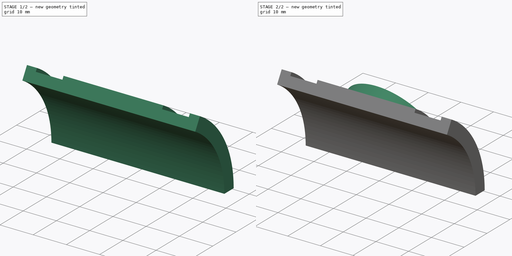
[diagram: build sequence overview — one tinted view per stage of 2, left to right]
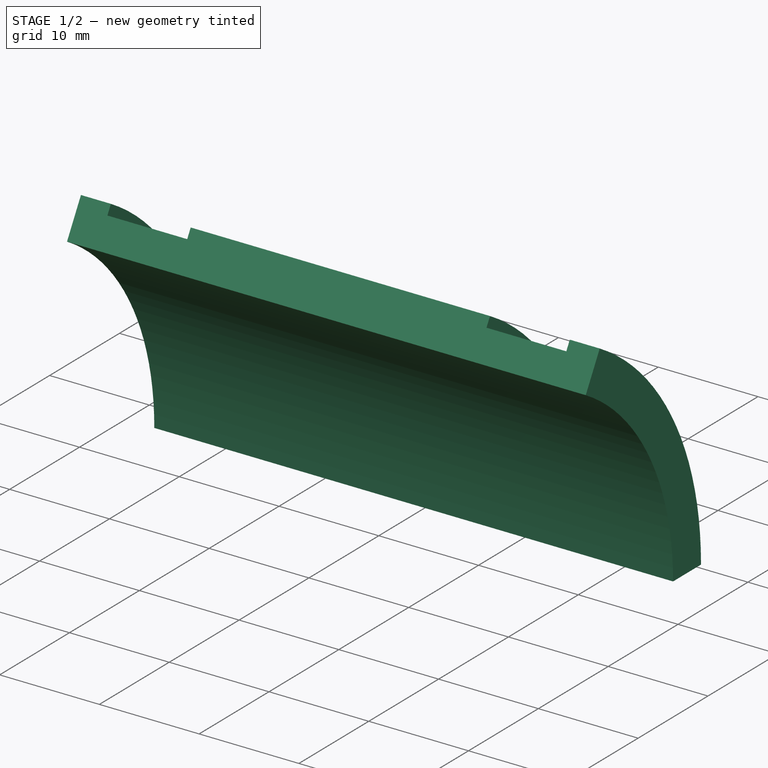
[diagram: stage 1 of 2 — iso view after this stage's code; geometry added in this stage tinted green]
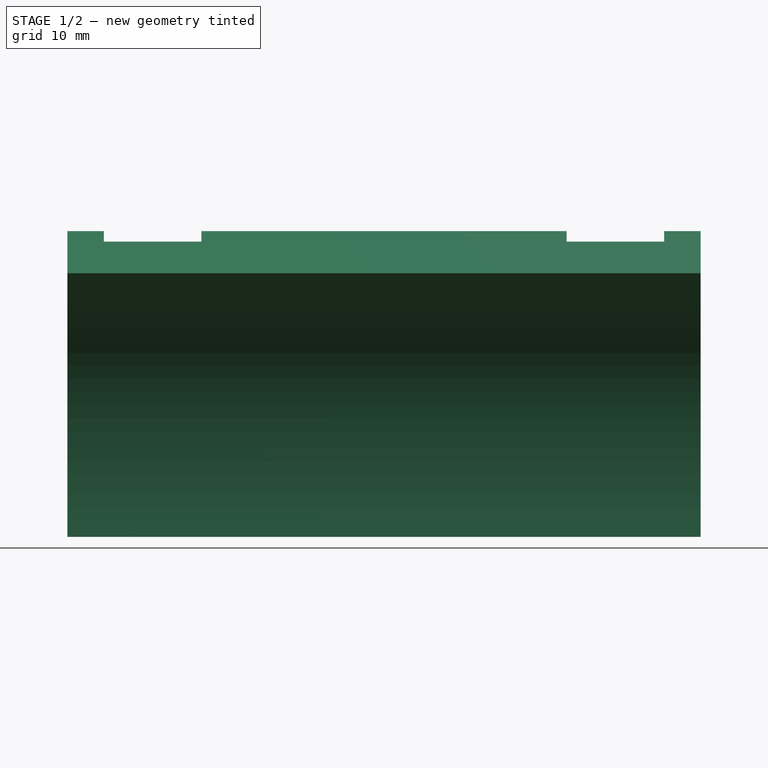
[diagram: stage 1 of 2 — front view after this stage's code; geometry added in this stage tinted green]
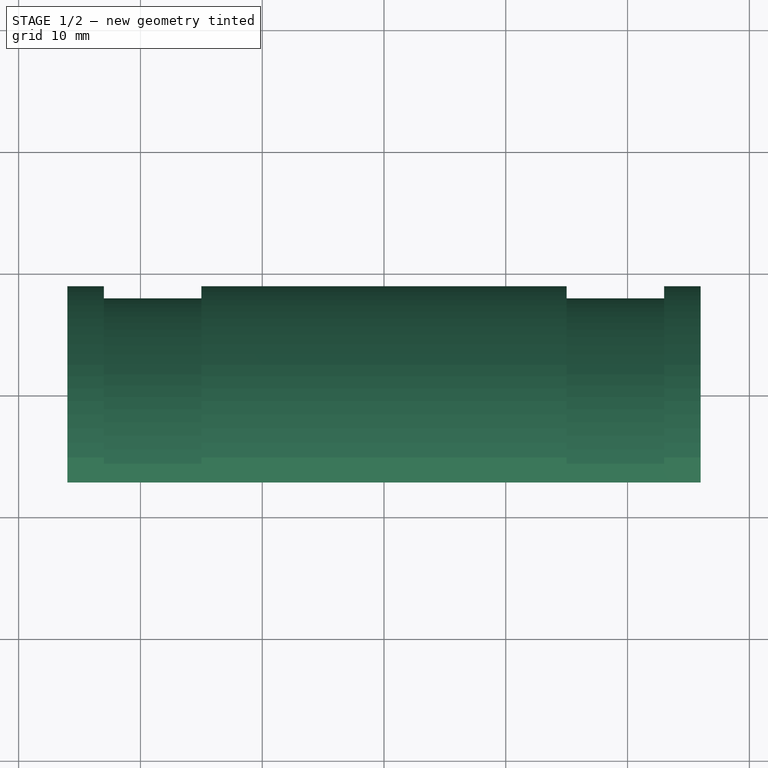
[diagram: stage 1 of 2 — top view after this stage's code; geometry added in this stage tinted green]
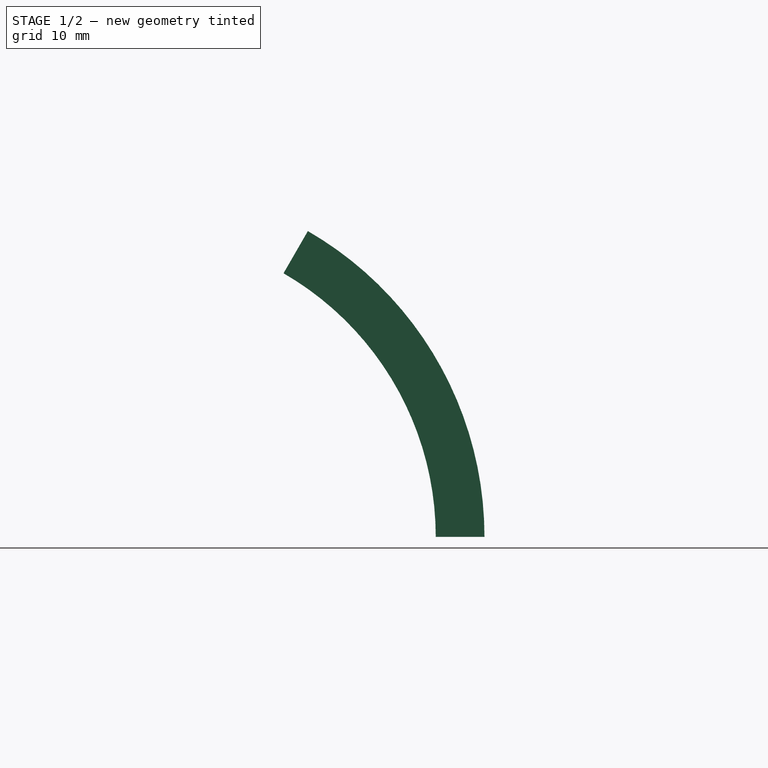
[diagram: stage 1 of 2 — right view after this stage's code; geometry added in this stage tinted green]
FCSTD DOCUMENT  (FreeCAD 0.18R16131 (Git))
Label: DashCamMiniRoleCageMount
License: All rights reserved
LicenseURL: http://en.wikipedia.org/wiki/All_rights_reserved
objects: Sketcher::SketchObject×2, PartDesign::Line×2, PartDesign::Revolution×1, PartDesign::Plane×1, PartDesign::Pad×1, PartDesign::Body×1
note: 10 computed .brp shape members not serialized (recipe doc carries the construction recipe); baked Part::Feature solids carry a one-line shape summary decoded from their .brp

FEATURE [Sketcher::SketchObject] Sketch
  MapMode = 5
  Support = -> [XY_Plane]
  sketch-geometry (12):
    g0: LineSegment StartX=-26 StartY=25 StartZ=0 EndX=26 EndY=25 EndZ=0
    g1: LineSegment StartX=-26 StartY=25 StartZ=0 EndX=-26 EndY=29 EndZ=0
    g2: LineSegment StartX=-26 StartY=29 StartZ=0 EndX=-23 EndY=29 EndZ=0
    g3: LineSegment StartX=-23 StartY=29 StartZ=0 EndX=-23 EndY=28 EndZ=0
    g4: LineSegment StartX=-23 StartY=28 StartZ=0 EndX=-15 EndY=28 EndZ=0
    g5: LineSegment StartX=-15 StartY=28 StartZ=0 EndX=-15 EndY=29 EndZ=0
    g6: LineSegment StartX=-15 StartY=29 StartZ=0 EndX=15 EndY=29 EndZ=0
    g7: LineSegment StartX=15 StartY=29 StartZ=0 EndX=15 EndY=28 EndZ=0
    g8: LineSegment StartX=15 StartY=28 StartZ=0 EndX=23 EndY=28 EndZ=0
    g9: LineSegment StartX=23 StartY=28 StartZ=0 EndX=23 EndY=29 EndZ=0
    g10: LineSegment StartX=23 StartY=29 StartZ=0 EndX=26 EndY=29 EndZ=0
    g11: LineSegment StartX=26 StartY=29 StartZ=0 EndX=26 EndY=25 EndZ=0
  constraints (36):
    c: Horizontal(g0)
    c: Vertical(g1)
    c: Coincident(g2,g1)
    c: Horizontal(g2)
    c: Coincident(g3,g2)
    c: Vertical(g3)
    c: Coincident(g4,g3)
    c: Horizontal(g4)
    c: Coincident(g5,g4)
    c: Vertical(g5)
    c: Coincident(g6,g5)
    c: Horizontal(g6)
    c: Coincident(g7,g6)
    c: Coincident(g8,g7)
    c: Horizontal(g8)
    c: Coincident(g9,g8)
    c: Vertical(g9)
    c: Coincident(g10,g9)
    c: Horizontal(g10)
    c: Coincident(g11,g10)
    c: Coincident(g11,g0)
    c: Vertical(g7)
    c: Vertical(g11)
    c: Distance(g2) = 3
    c: Distance(g4) = 8
    c: Distance(g8) = 8
    c: Distance(g10) = 3
    c: Distance(g1) = 4
    c: Coincident(g0,g1)
    c: Distance(g3) = 1
    c: Distance(g5) = 1
    c: Distance(g7) = 1
    c: Distance(g9) = 1
    c: DistanceY(g-1,g0) = 25
    c: DistanceX(g-2,g5) = -15
    c: DistanceX(g-2,g6) = 15
FEATURE [PartDesign::Revolution] Revolution
  Angle = 60
  Axis = (1,0,0)
  Base = (0,0,0)
  Profile = -> Sketch
  ReferenceAxis = -> Sketch [H_Axis]
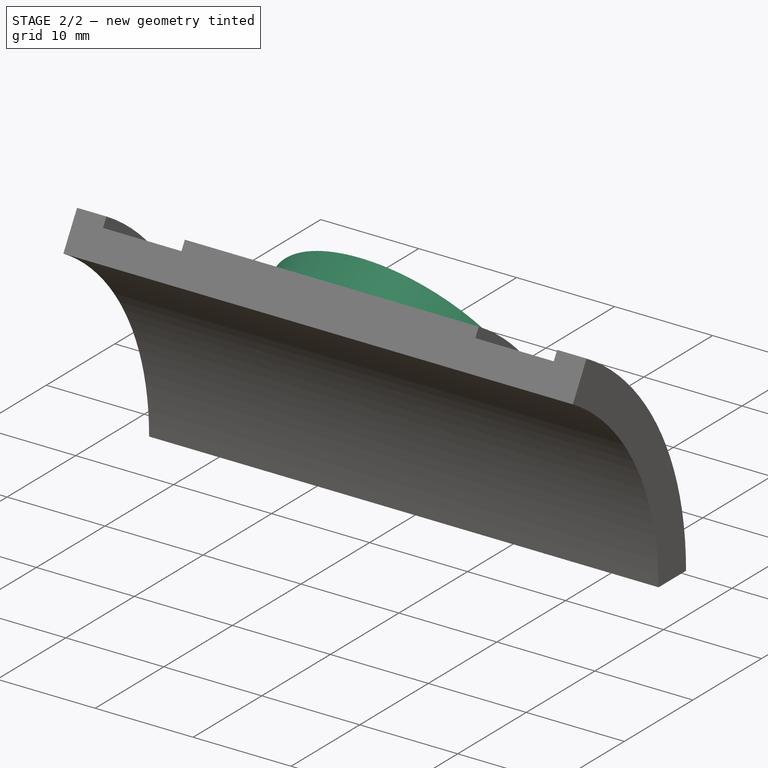
[diagram: stage 2 of 2 — iso view after this stage's code; geometry added in this stage tinted green]
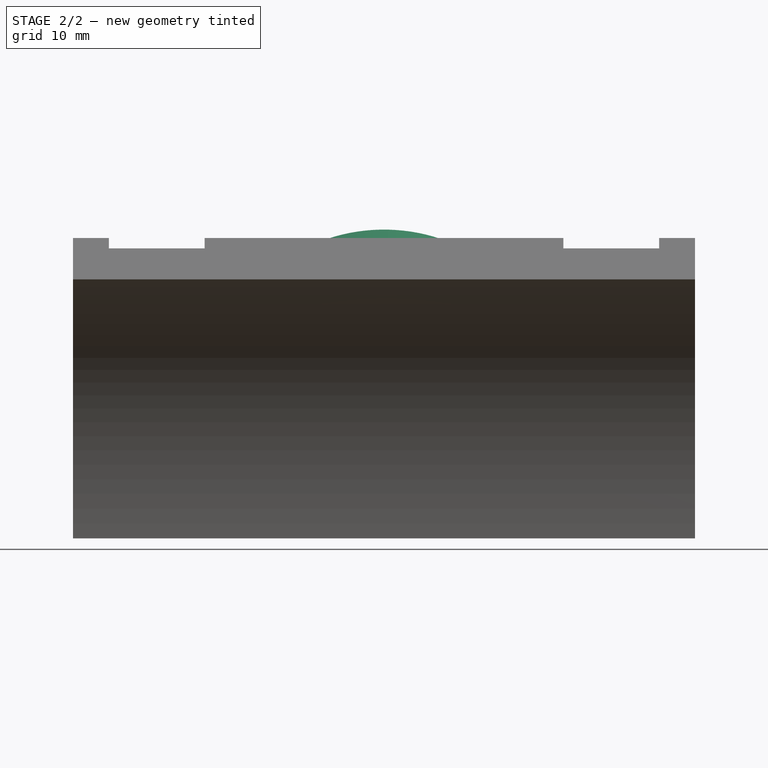
[diagram: stage 2 of 2 — front view after this stage's code; geometry added in this stage tinted green]
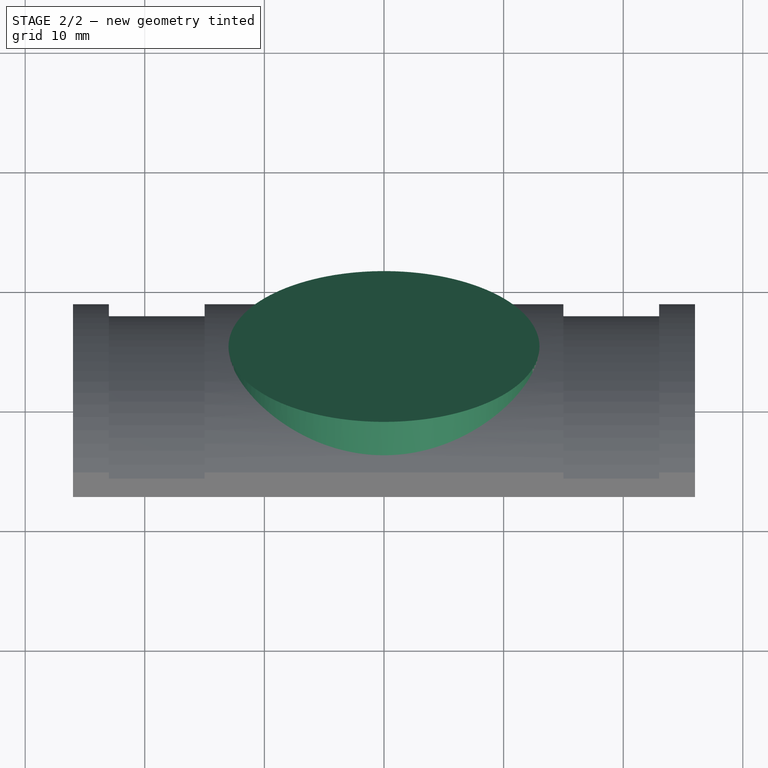
[diagram: stage 2 of 2 — top view after this stage's code; geometry added in this stage tinted green]
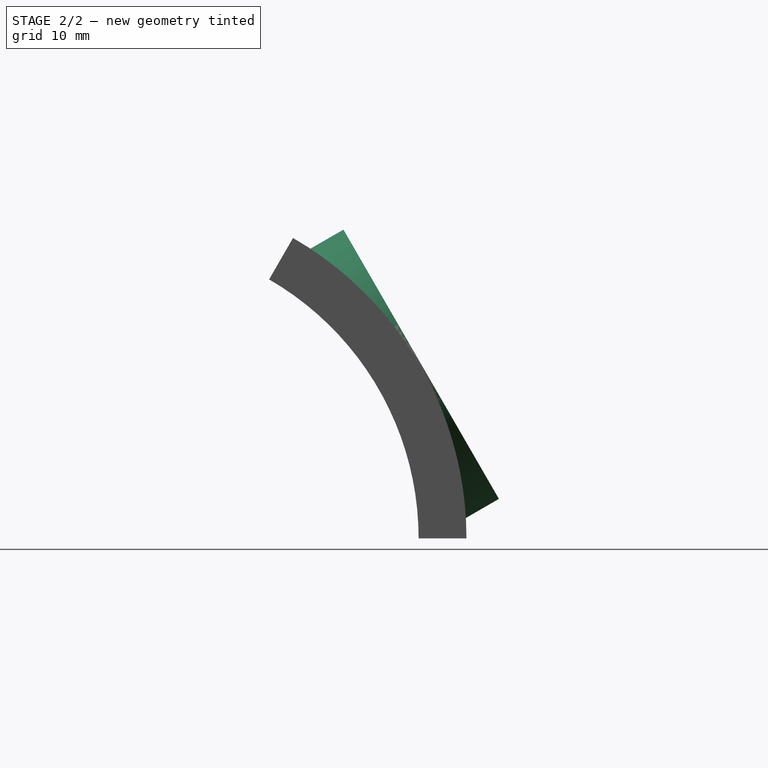
[diagram: stage 2 of 2 — right view after this stage's code; geometry added in this stage tinted green]
FEATURE [PartDesign::Line] DatumLine
  AttacherType = Attacher::AttachEngineLine
  MapMode = 29
  Placement = pos=(0,29,0) rot=(0.57735,0.57735,0.57735;2.0944rad)
  Support = -> [Revolution]
FEATURE [PartDesign::Line] DatumLine001
  AttacherType = Attacher::AttachEngineLine
  MapMode = 29
  Placement = pos=(0,14.5,25.1147) rot=(0.57735,0.57735,0.57735;2.0944rad)
  Support = -> [Revolution]
FEATURE [PartDesign::Plane] DatumPlane
  Length = 62.3855
  MapMode = 13
  Placement = pos=(0.333333,24.1667,8.37158) rot=(1,0,0;2.0944rad)
  ResizeMode = 0
  Support = -> [DatumLine,DatumLine001]
  Width = 62.2408
FEATURE [Sketcher::SketchObject] Sketch001
  ExternalGeometry = -> [Revolution]
  MapMode = 5
  Placement = pos=(0.333333,24.1667,8.37158) rot=(1,0,0;2.0944rad)
  Support = -> [DatumPlane]
  sketch-geometry (4):
    g0: LineSegment [constr] StartX=-15.3333 StartY=-9.66667 StartZ=0 EndX=14.6667 EndY=19.3333 EndZ=0
    g1: LineSegment [constr] StartX=-15.3333 StartY=19.3333 StartZ=0 EndX=14.6667 EndY=-9.66667 EndZ=0
    g2: GeomPoint X=-0.333333 Y=4.83333 Z=0
    g3: Circle CenterX=-0.333333 CenterY=4.83333 CenterZ=0 NormalX=0 NormalY=0 NormalZ=1 AngleXU=0 Radius=13
  constraints (8):
    c: Coincident(g0,g-3)
    c: Coincident(g1,g-4)
    c: Coincident(g0,g-4)
    c: Coincident(g1,g-3)
    c: PointOnObject(g2,g1)
    c: PointOnObject(g2,g0)
    c: Radius(g3) = 13
    c: Coincident(g2,g3)
FEATURE [PartDesign::Pad] Pad
  BaseFeature = -> Revolution
  Length = 4
  Length2 = 100
  Profile = -> Sketch001
  Reversed = true
  Type = 0
FEATURE [PartDesign::Body] Body
  Group = -> [Sketch,Revolution,DatumLine,DatumLine001,DatumPlane,Sketch001,Pad]
  Origin = -> Origin
  Tip = -> Pad
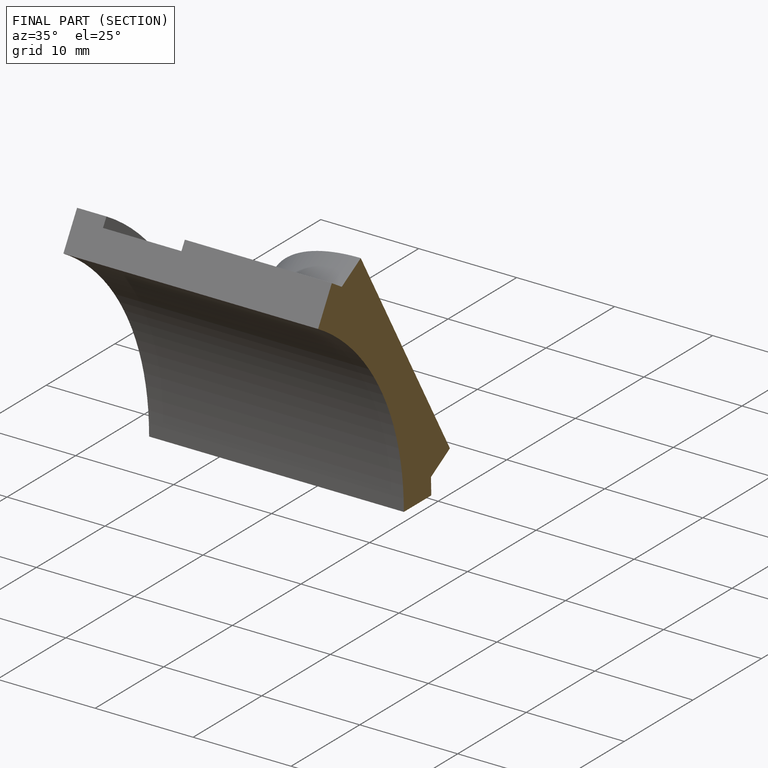
[diagram: finished part — half-section view (interior)]
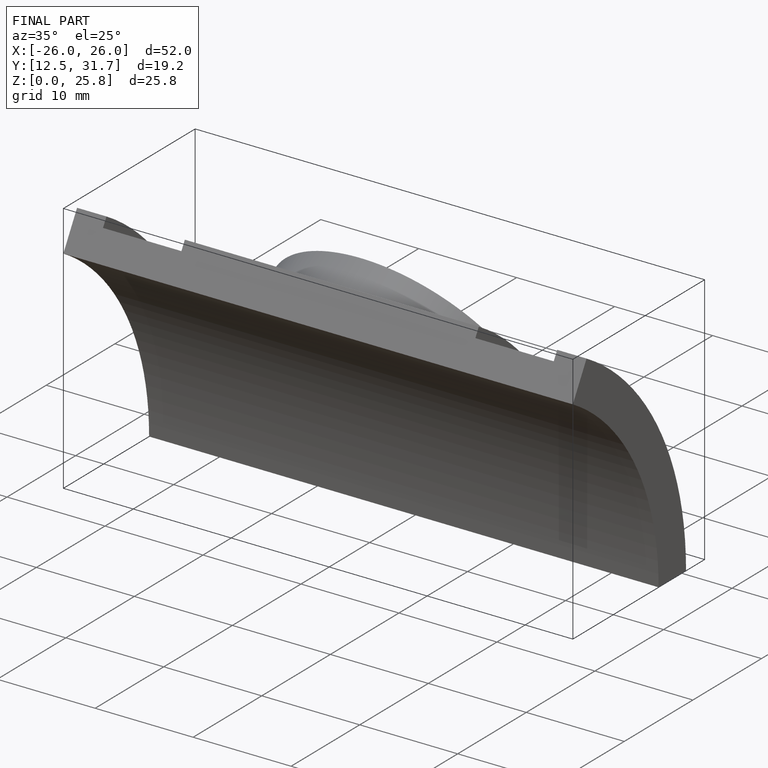
[diagram: finished part — iso view with bounding-box wireframe]
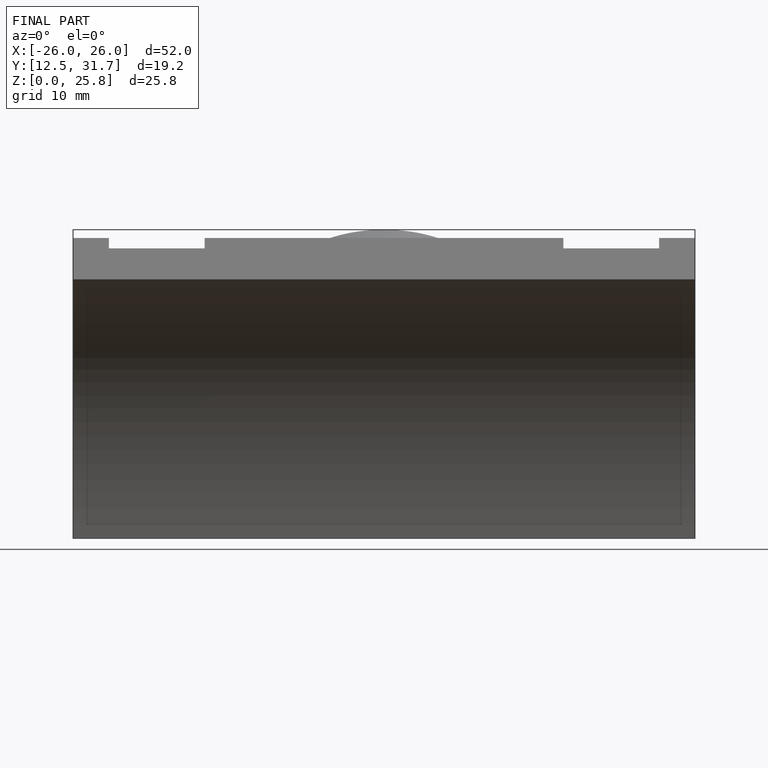
[diagram: finished part — front view with bounding-box wireframe]
